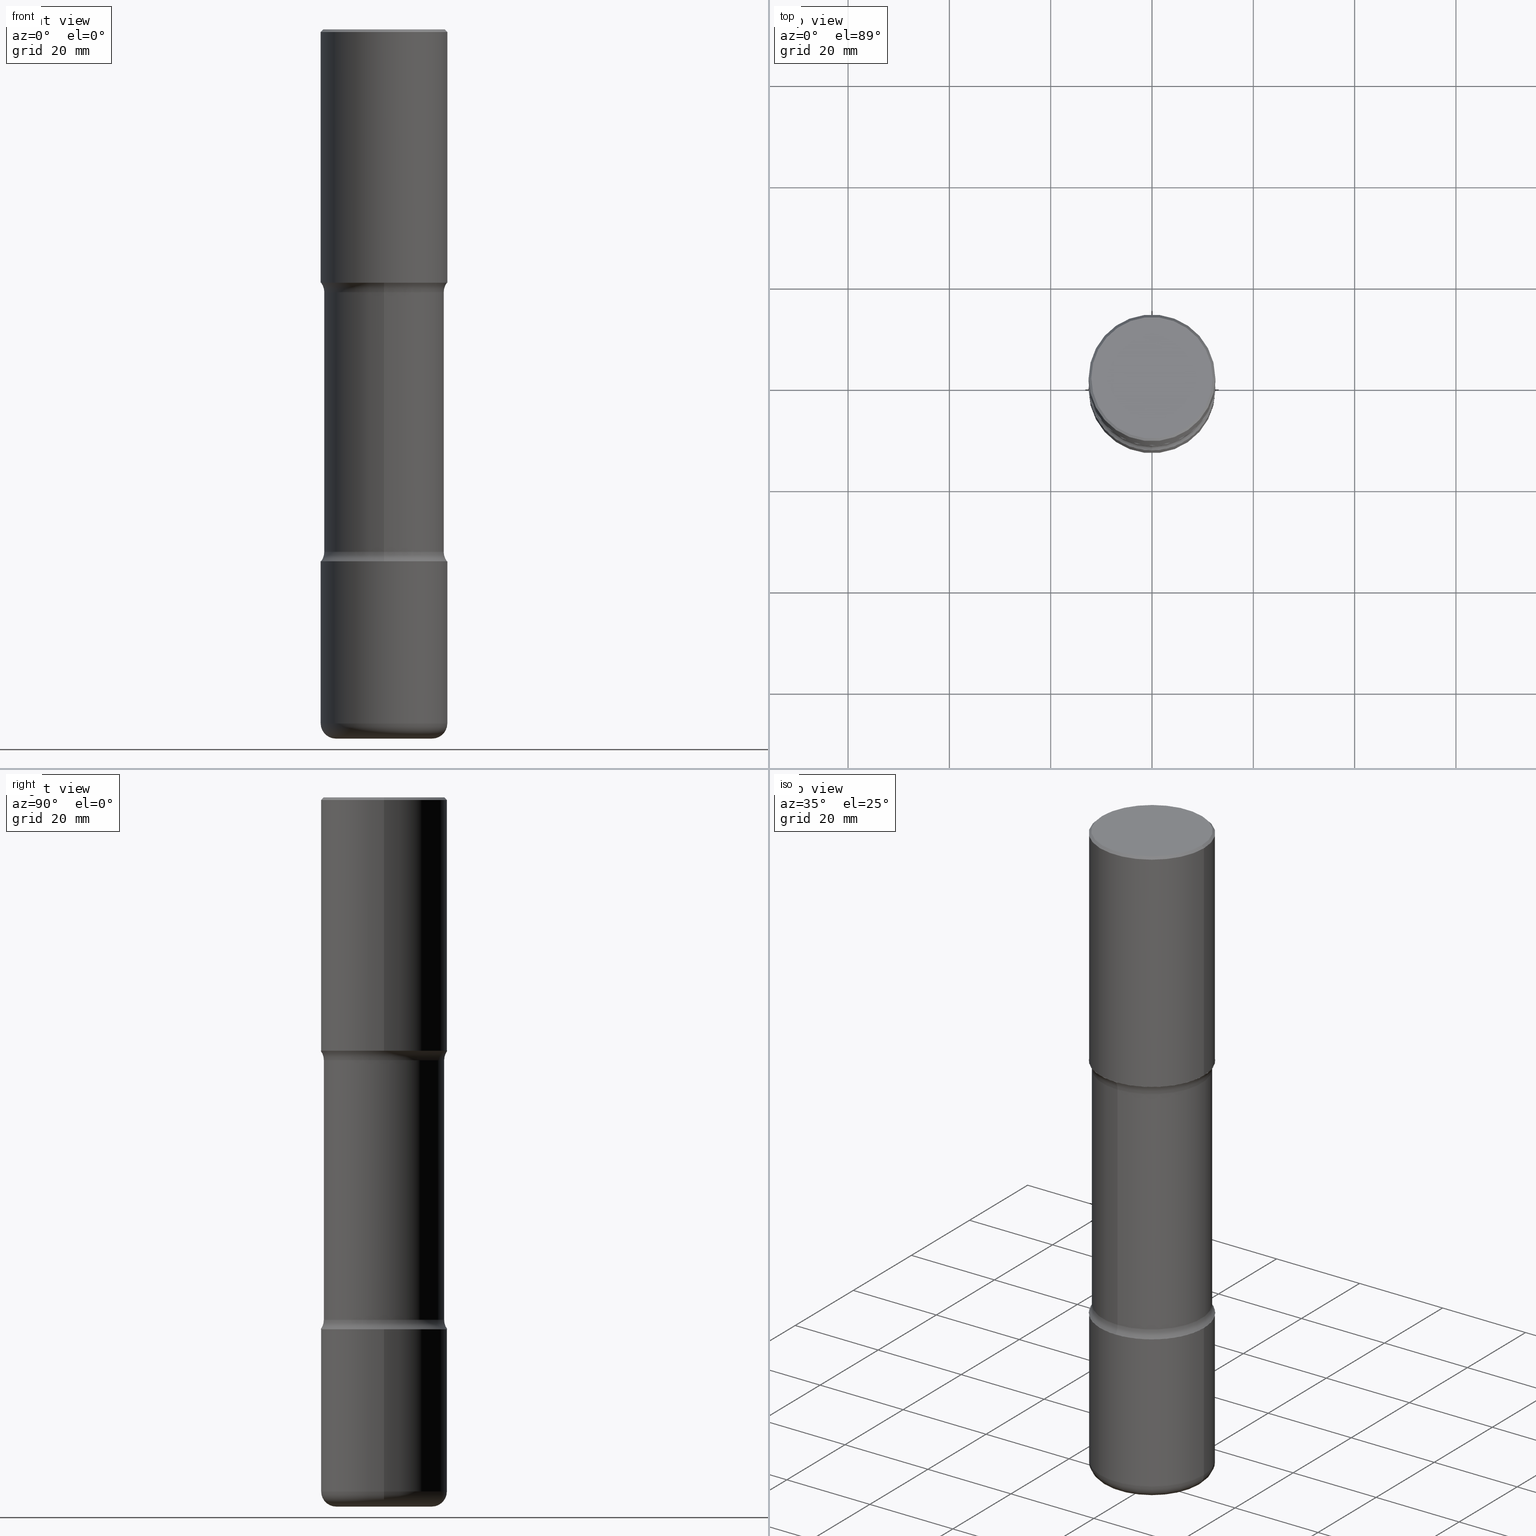
[diagram: canonical four-view strip — front | top / right | iso, engineering-drawing reading convention]
A machine part, canonical four-view strip (front | top / right | iso — engineering-drawing reading convention). The complete STEP part file that produces these views, byte-faithful:
ISO-10303-21;
HEADER;
FILE_DESCRIPTION (( 'STEP AP203' ),
    '1' );
FILE_NAME ('45019.STEP',
    '2024-03-02T04:45:03',
    ( '' ),
    ( '' ),
    'SwSTEP 2.0',
    'SolidWorks 2023',
    '' );
FILE_SCHEMA (( 'CONFIG_CONTROL_DESIGN' ));
ENDSEC;

DATA;
#1 = AXIS2_PLACEMENT_3D ( 'NONE', #270, #61, #349 ) ;
#2 = CARTESIAN_POINT ( 'NONE',  ( -4.064845063679533496E-15, -0.5925000000000143485, -4.059268949423744388 ) ) ;
#3 = DIRECTION ( 'NONE',  ( -2.445468806185136597E-29, 3.491481338843145583E-15, 1.000000000000000000 ) ) ;
#4 = ORIENTED_EDGE ( 'NONE', *, *, #292, .T. ) ;
#5 = ORIENTED_EDGE ( 'NONE', *, *, #307, .T. ) ;
#6 = ADVANCED_FACE ( 'NONE', ( #225 ), #288, .T. ) ;
#7 = DIRECTION ( 'NONE',  ( 6.860497997771528407E-15, 1.000000000000000000, 0.000000000000000000 ) ) ;
#8 = DIRECTION ( 'NONE',  ( -2.438088387897960049E-29, 3.491481338843145188E-15, 1.000000000000000000 ) ) ;
#9 = EDGE_LOOP ( 'NONE', ( #218, #521 ) ) ;
#10 = ORIENTED_EDGE ( 'NONE', *, *, #91, .F. ) ;
#11 = DIRECTION ( 'NONE',  ( 2.514686486086695474E-29, -3.392357681598433540E-15, -1.000000000000000000 ) ) ;
#12 = FACE_OUTER_BOUND ( 'NONE', #394, .T. ) ;
#13 = VERTEX_POINT ( 'NONE', #139 ) ;
#14 = VERTEX_POINT ( 'NONE', #23 ) ;
#15 = DIRECTION ( 'NONE',  ( -1.000000000000000000, 7.105427357601006592E-15, 0.000000000000000000 ) ) ;
#16 = ORIENTED_EDGE ( 'NONE', *, *, #380, .T. ) ;
#17 = EDGE_CURVE ( 'NONE', #543, #149, #352, .T. ) ;
#18 = ORIENTED_EDGE ( 'NONE', *, *, #466, .T. ) ;
#19 = EDGE_LOOP ( 'NONE', ( #82, #526, #59, #516 ) ) ;
#20 = CARTESIAN_POINT ( 'NONE',  ( -0.3740500000000000491, -1.596081428179996673E-14, -5.511800000000000033 ) ) ;
#21 = TOROIDAL_SURFACE ( 'NONE', #356, 0.5925000000000002487, 0.1250000000000001388 ) ;
#22 = DIRECTION ( 'NONE',  ( 1.000000000000000000, -6.860497997771530774E-15, 4.842012794319787643E-29 ) ) ;
#23 = CARTESIAN_POINT ( 'NONE',  ( 3.264535051818429005E-15, 0.4674999999999858713, -4.059268949423747941 ) ) ;
#24 = VERTEX_POINT ( 'NONE', #242 ) ;
#25 = DIRECTION ( 'NONE',  ( -2.445468806185136597E-29, 3.491481338843145583E-15, 1.000000000000000000 ) ) ;
#26 = ORIENTED_EDGE ( 'NONE', *, *, #233, .T. ) ;
#27 = CARTESIAN_POINT ( 'NONE',  ( 1.319012509992077146E-28, -1.883200289731827623E-14, -5.393699999999999939 ) ) ;
#28 = ADVANCED_FACE ( 'NONE', ( #76 ), #201, .T. ) ;
#29 = DIRECTION ( 'NONE',  ( 1.000000000000000000, -6.982962677686265922E-15, 4.876176775795935793E-29 ) ) ;
#30 = PLANE ( 'NONE',  #117 ) ;
#31 = CIRCLE ( 'NONE', #334, 0.3740500000000000491 ) ;
#32 = PERSON_AND_ORGANIZATION_ROLE ( 'design_supplier' ) ;
#33 = CARTESIAN_POINT ( 'NONE',  ( 1.357431692883558381E-28, -1.910775444375243513E-14, -5.511800000000000033 ) ) ;
#34 = APPROVAL_STATUS ( 'not_yet_approved' ) ;
#35 = EDGE_CURVE ( 'NONE', #55, #14, #294, .T. ) ;
#36 = PERSON_AND_ORGANIZATION_ROLE ( 'classification_officer' ) ;
#37 = CARTESIAN_POINT ( 'NONE',  ( 4.890937612370298557E-31, -6.982962677686327354E-17, -0.02000000000000010103 ) ) ;
#38 = CARTESIAN_POINT ( 'NONE',  ( 1.347893496593123646E-28, -1.924434684343564878E-14, -5.511800000000000033 ) ) ;
#39 = AXIS2_PLACEMENT_3D ( 'NONE', #287, #3, #204 ) ;
#40 = DATE_TIME_ROLE ( 'creation_date' ) ;
#41 = DIRECTION ( 'NONE',  ( 1.000000000000000000, -6.982962677686263555E-15, 0.000000000000000000 ) ) ;
#42 = DIRECTION ( 'NONE',  ( 6.982962677686265133E-15, 1.000000000000000000, -3.392357681598433540E-15 ) ) ;
#43 = COORDINATED_UNIVERSAL_TIME_OFFSET ( 5, 0, .BEHIND. ) ;
#44 = EDGE_CURVE ( 'NONE', #13, #14, #221, .T. ) ;
#45 = DIRECTION ( 'NONE',  ( 1.000000000000000000, -6.982962677686267499E-15, 0.000000000000000000 ) ) ;
#46 = DIRECTION ( 'NONE',  ( 2.514686486086695474E-29, -3.392357681598433540E-15, -1.000000000000000000 ) ) ;
#47 = DIRECTION ( 'NONE',  ( 1.000000000000000000, -6.982962677686266711E-15, 4.876176775795935793E-29 ) ) ;
#48 = DIRECTION ( 'NONE',  ( -2.445468806185136877E-29, 3.491481338843145188E-15, 1.000000000000000000 ) ) ;
#49 = AXIS2_PLACEMENT_3D ( 'NONE', #389, #11, #532 ) ;
#50 = CIRCLE ( 'NONE', #355, 0.4675000000000000822 ) ;
#51 = AXIS2_PLACEMENT_3D ( 'NONE', #347, #267, #190 ) ;
#52 = ORIENTED_EDGE ( 'NONE', *, *, #215, .F. ) ;
#53 = ADVANCED_FACE ( 'NONE', ( #407 ), #414, .F. ) ;
#54 = CARTESIAN_POINT ( 'NONE',  ( 0.4921500000000000874, -2.226866797914157358E-14, -5.393699999999999939 ) ) ;
#55 = VERTEX_POINT ( 'NONE', #154 ) ;
#56 = PLANE ( 'NONE',  #410 ) ;
#57 = DIRECTION ( 'NONE',  ( -1.000000000000000000, 6.982962677686265922E-15, 0.000000000000000000 ) ) ;
#58 = FACE_OUTER_BOUND ( 'NONE', #150, .T. ) ;
#59 = ORIENTED_EDGE ( 'NONE', *, *, #35, .T. ) ;
#60 = EDGE_CURVE ( 'NONE', #390, #388, #538, .T. ) ;
#61 = DIRECTION ( 'NONE',  ( 2.514686486086695474E-29, -3.392357681598433540E-15, -1.000000000000000000 ) ) ;
#62 = PRODUCT ( '45019', '45019', '', ( #136 ) ) ;
#63 = DESIGN_CONTEXT ( 'detailed design', #371, 'design' ) ;
#64 = ORIENTED_EDGE ( 'NONE', *, *, #527, .T. ) ;
#65 = PRODUCT_DEFINITION ( 'UNKNOWN', '', #522, #63 ) ;
#66 = EDGE_LOOP ( 'NONE', ( #542, #379, #433, #192 ) ) ;
#67 = EDGE_LOOP ( 'NONE', ( #470, #341 ) ) ;
#68 = ORIENTED_EDGE ( 'NONE', *, *, #380, .F. ) ;
#69 = AXIS2_PLACEMENT_3D ( 'NONE', #428, #125, #520 ) ;
#70 = PERSON_AND_ORGANIZATION ( #472, #170 ) ;
#71 = LOCAL_TIME ( 23, 45, 3.000000000000000000, #318 ) ;
#72 = AXIS2_PLACEMENT_3D ( 'NONE', #275, #365, #232 ) ;
#73 = ORIENTED_EDGE ( 'NONE', *, *, #425, .F. ) ;
#74 = DIRECTION ( 'NONE',  ( -1.000000000000000000, 6.982962677686265922E-15, -4.883557194083112340E-29 ) ) ;
#75 = MANIFOLD_SOLID_BREP ( 'Body-Move/Copy2[4]', #306 ) ;
#76 = FACE_OUTER_BOUND ( 'NONE', #223, .T. ) ;
#77 = FACE_OUTER_BOUND ( 'NONE', #219, .T. ) ;
#78 = DIRECTION ( 'NONE',  ( 2.514686486086695474E-29, -3.392357681598433540E-15, -1.000000000000000000 ) ) ;
#79 = CLOSED_SHELL ( 'NONE', ( #448, #266, #547, #53, #420, #393 ) ) ;
#80 = TOROIDAL_SURFACE ( 'NONE', #366, 0.3740500000000001601, 0.1180999999999999966 ) ;
#81 = CALENDAR_DATE ( 2024, 1, 3 ) ;
#82 = ORIENTED_EDGE ( 'NONE', *, *, #476, .F. ) ;
#83 = CARTESIAN_POINT ( 'NONE',  ( -0.4921500000000003650, 2.553075289854047247E-17, -1.968499999999999472 ) ) ;
#84 = DATE_TIME_ROLE ( 'classification_date' ) ;
#85 = DIRECTION ( 'NONE',  ( -2.445468806185136877E-29, 3.491481338843145188E-15, 1.000000000000000000 ) ) ;
#86 = PERSON_AND_ORGANIZATION ( #472, #170 ) ;
#87 = CARTESIAN_POINT ( 'NONE',  ( 4.890937612370298557E-31, -6.982962677686327354E-17, -0.02000000000000010103 ) ) ;
#88 = EDGE_CURVE ( 'NONE', #345, #180, #280, .T. ) ;
#89 = PERSON_AND_ORGANIZATION_ROLE ( 'design_owner' ) ;
#90 = CARTESIAN_POINT ( 'NONE',  ( 0.4921500000000000874, -3.446223716380123532E-15, -0.02000000000000010103 ) ) ;
#91 = EDGE_CURVE ( 'NONE', #14, #13, #50, .T. ) ;
#92 = CARTESIAN_POINT ( 'NONE',  ( 1.010907895100811684E-28, -1.443308555850979562E-14, -4.133799999999999919 ) ) ;
#93 = FACE_OUTER_BOUND ( 'NONE', #404, .T. ) ;
#94 = CC_DESIGN_PERSON_AND_ORGANIZATION_ASSIGNMENT ( #330, #32, ( #522 ) ) ;
#95 = AXIS2_PLACEMENT_3D ( 'NONE', #525, #442, #357 ) ;
#96 = CIRCLE ( 'NONE', #402, 0.4921500000000003094 ) ;
#97 = CIRCLE ( 'NONE', #51, 0.4675000000000001377 ) ;
#98 = VERTEX_POINT ( 'NONE', #119 ) ;
#99 = LINE ( 'NONE', #360, #157 ) ;
#100 = DIRECTION ( 'NONE',  ( -2.445468806185136597E-29, 3.491481338843145583E-15, 1.000000000000000000 ) ) ;
#101 = CIRCLE ( 'NONE', #171, 0.1250000000000001110 ) ;
#102 = EDGE_LOOP ( 'NONE', ( #184, #135, #191, #530 ) ) ;
#103 = DIRECTION ( 'NONE',  ( -1.000000000000000000, 6.982962677686265922E-15, -4.876176775795935793E-29 ) ) ;
#104 = CARTESIAN_POINT ( 'NONE',  ( -4.064845063679584772E-15, -0.5925000000000075762, -2.043031050576251673 ) ) ;
#105 = ORIENTED_EDGE ( 'NONE', *, *, #559, .T. ) ;
#106 = CARTESIAN_POINT ( 'NONE',  ( 0.4921500000000000874, -3.436665081823296565E-15, 2.399810400207970163E-29 ) ) ;
#107 = DIRECTION ( 'NONE',  ( 2.514686486086695194E-29, -3.392357681598433935E-15, -1.000000000000000000 ) ) ;
#108 = ADVANCED_FACE ( 'NONE', ( #505 ), #276, .F. ) ;
#109 = VECTOR ( 'NONE', #515, 39.37007874015748143 ) ;
#110 = CARTESIAN_POINT ( 'NONE',  ( 0.000000000000000000, 0.000000000000000000, 0.000000000000000000 ) ) ;
#111 = FACE_OUTER_BOUND ( 'NONE', #102, .T. ) ;
#112 = DIRECTION ( 'NONE',  ( -1.000000000000000000, 6.982962677686265922E-15, -4.883557194083112340E-29 ) ) ;
#113 = DIRECTION ( 'NONE',  ( 2.514686486086695474E-29, -3.392357681598433540E-15, -1.000000000000000000 ) ) ;
#114 = CALENDAR_DATE ( 2024, 1, 3 ) ;
#115 = ADVANCED_FACE ( 'NONE', ( #111 ), #363, .F. ) ;
#116 = DIRECTION ( 'NONE',  ( 2.438088387897960049E-29, -3.491481338843145188E-15, -1.000000000000000000 ) ) ;
#117 = AXIS2_PLACEMENT_3D ( 'NONE', #320, #116, #361 ) ;
#118 = AXIS2_PLACEMENT_3D ( 'NONE', #144, #405, #193 ) ;
#119 = CARTESIAN_POINT ( 'NONE',  ( -3.376394089603216058E-15, -0.4921500000000076924, -1.968499999999997918 ) ) ;
#120 = APPROVAL_ROLE ( '' ) ;
#121 = DIRECTION ( 'NONE',  ( -6.982962677686266711E-15, -1.000000000000000000, 3.491481338843145583E-15 ) ) ;
#122 = APPROVAL ( #241, 'UNSPECIFIED' ) ;
#123 = APPROVAL_ROLE ( '' ) ;
#124 = CARTESIAN_POINT ( 'NONE',  ( 9.926815591731683841E-29, -1.417286178625843291E-14, -4.059268949423747053 ) ) ;
#125 = DIRECTION ( 'NONE',  ( -2.445468806185136597E-29, 3.491481338843145583E-15, 1.000000000000000000 ) ) ;
#126 = CIRCLE ( 'NONE', #39, 0.4721500000000000696 ) ;
#127 = VECTOR ( 'NONE', #48, 39.37007874015748143 ) ;
#128 = DIRECTION ( 'NONE',  ( 2.514686486086695474E-29, -3.392357681598433540E-15, -1.000000000000000000 ) ) ;
#129 = DIRECTION ( 'NONE',  ( 2.514686486086695474E-29, -3.392357681598433540E-15, -1.000000000000000000 ) ) ;
#130 = FACE_OUTER_BOUND ( 'NONE', #174, .T. ) ;
#131 = ADVANCED_FACE ( 'NONE', ( #155 ), #30, .T. ) ;
#132 = ORIENTED_EDGE ( 'NONE', *, *, #458, .T. ) ;
#133 = AXIS2_PLACEMENT_3D ( 'NONE', #185, #74, #151 ) ;
#134 = CIRCLE ( 'NONE', #452, 0.4921500000000001984 ) ;
#135 = ORIENTED_EDGE ( 'NONE', *, *, #559, .F. ) ;
#136 = MECHANICAL_CONTEXT ( 'NONE', #436, 'mechanical' ) ;
#137 = DIRECTION ( 'NONE',  ( 6.982962677686265922E-15, 1.000000000000000000, -3.330506545156062313E-15 ) ) ;
#138 = APPROVAL ( #34, 'UNSPECIFIED' ) ;
#139 = CARTESIAN_POINT ( 'NONE',  ( -3.291838451780625261E-15, -0.4675000000000142930, -4.059268949423745276 ) ) ;
#140 = ORIENTED_EDGE ( 'NONE', *, *, #335, .T. ) ;
#141 = DIRECTION ( 'NONE',  ( -2.445468806185136597E-29, 3.491481338843145583E-15, 1.000000000000000000 ) ) ;
#142 = VERTEX_POINT ( 'NONE', #545 ) ;
#143 = ORIENTED_EDGE ( 'NONE', *, *, #279, .F. ) ;
#144 = CARTESIAN_POINT ( 'NONE',  ( 1.010907895100811684E-28, -1.443308555850979562E-14, -4.133799999999999919 ) ) ;
#145 = CIRCLE ( 'NONE', #118, 0.4921500000000001984 ) ;
#146 = CIRCLE ( 'NONE', #463, 0.4921500000000000874 ) ;
#147 = DIRECTION ( 'NONE',  ( 1.000000000000000000, 0.000000000000000000, 0.000000000000000000 ) ) ;
#148 = LINE ( 'NONE', #310, #449 ) ;
#149 = VERTEX_POINT ( 'NONE', #464 ) ;
#150 = EDGE_LOOP ( 'NONE', ( #4, #16, #336, #212 ) ) ;
#151 = DIRECTION ( 'NONE',  ( -6.982962677686265133E-15, -1.000000000000000000, 0.000000000000000000 ) ) ;
#152 = VERTEX_POINT ( 'NONE', #83 ) ;
#153 = CARTESIAN_POINT ( 'NONE',  ( 4.813905344975440153E-29, -6.872981015512730130E-15, -1.968499999999999472 ) ) ;
#154 = CARTESIAN_POINT ( 'NONE',  ( 3.436665081823398723E-15, 0.4921499999999857655, -4.133800000000001695 ) ) ;
#155 = FACE_OUTER_BOUND ( 'NONE', #268, .T. ) ;
#156 = ADVANCED_BREP_SHAPE_REPRESENTATION ( '45019', ( #429, #430, #75, #397 ), #188 ) ;
#157 = VECTOR ( 'NONE', #401, 39.37007874015748143 ) ;
#158 = DIRECTION ( 'NONE',  ( 6.982962677686265922E-15, 1.000000000000000000, -2.337410048054984002E-15 ) ) ;
#159 = AXIS2_PLACEMENT_3D ( 'NONE', #368, #112, #549 ) ;
#160 = DATE_AND_TIME ( #81, #523 ) ;
#161 = CC_DESIGN_PERSON_AND_ORGANIZATION_ASSIGNMENT ( #409, #89, ( #62 ) ) ;
#162 = CARTESIAN_POINT ( 'NONE',  ( 9.921656725330168688E-29, -1.418024957656984198E-14, -4.059268949423747053 ) ) ;
#163 = EDGE_CURVE ( 'NONE', #152, #345, #413, .T. ) ;
#164 = APPROVAL_DATE_TIME ( #322, #274 ) ;
#165 = DIRECTION ( 'NONE',  ( -2.445468806185136877E-29, 3.491481338843145188E-15, 1.000000000000000000 ) ) ;
#166 = SECURITY_CLASSIFICATION_LEVEL ( 'unclassified' ) ;
#167 = DIRECTION ( 'NONE',  ( 1.000000000000000000, -6.860497997771530774E-15, 4.842012794319787643E-29 ) ) ;
#168 = VECTOR ( 'NONE', #396, 39.37007874015748143 ) ;
#169 = LINE ( 'NONE', #333, #237 ) ;
#170 = ORGANIZATION ( 'UNSPECIFIED', 'UNSPECIFIED', '' ) ;
#171 = AXIS2_PLACEMENT_3D ( 'NONE', #2, #167, #418 ) ;
#172 = DIRECTION ( 'NONE',  ( -2.514686486086694914E-29, 3.392357681598433935E-15, 1.000000000000000000 ) ) ;
#173 = LINE ( 'NONE', #286, #552 ) ;
#174 = EDGE_LOOP ( 'NONE', ( #105, #432, #10, #181 ) ) ;
#175 = ORIENTED_EDGE ( 'NONE', *, *, #316, .F. ) ;
#176 = APPROVAL_PERSON_ORGANIZATION ( #504, #138, #123 ) ;
#177 = CONICAL_SURFACE ( 'NONE', #500, 0.4921500000000000874, 0.7853981633974471688 ) ;
#178 = CC_DESIGN_PERSON_AND_ORGANIZATION_ASSIGNMENT ( #548, #421, ( #522 ) ) ;
#179 = DIRECTION ( 'NONE',  ( 1.000000000000000000, -6.982962677686265922E-15, 4.876176775795935793E-29 ) ) ;
#180 = VERTEX_POINT ( 'NONE', #424 ) ;
#181 = ORIENTED_EDGE ( 'NONE', *, *, #289, .F. ) ;
#182 =( CONVERSION_BASED_UNIT ( 'INCH', #342 ) LENGTH_UNIT ( ) NAMED_UNIT ( #319 ) );
#183 = ORIENTED_EDGE ( 'NONE', *, *, #44, .T. ) ;
#184 = ORIENTED_EDGE ( 'NONE', *, *, #517, .F. ) ;
#185 = CARTESIAN_POINT ( 'NONE',  ( 4.137405386529163040E-15, 0.5924999999999929212, -2.043031050576255225 ) ) ;
#186 = DIRECTION ( 'NONE',  ( 1.000000000000000000, -6.982962677686264344E-15, 4.883557194083111780E-29 ) ) ;
#187 = ADVANCED_FACE ( 'NONE', ( #130 ), #512, .T. ) ;
#188 =( GEOMETRIC_REPRESENTATION_CONTEXT ( 3 ) GLOBAL_UNCERTAINTY_ASSIGNED_CONTEXT ( ( #453 ) ) GLOBAL_UNIT_ASSIGNED_CONTEXT ( ( #182, #222, #350 ) ) REPRESENTATION_CONTEXT ( 'NONE', 'WORKASPACE' ) );
#189 = CIRCLE ( 'NONE', #507, 0.1180999999999999689 ) ;
#190 = DIRECTION ( 'NONE',  ( 6.982962677686265922E-15, 1.000000000000000000, -3.506115072082476004E-15 ) ) ;
#191 = ORIENTED_EDGE ( 'NONE', *, *, #295, .T. ) ;
#192 = ORIENTED_EDGE ( 'NONE', *, *, #475, .F. ) ;
#193 = DIRECTION ( 'NONE',  ( 1.000000000000000000, -6.982962677686267499E-15, 0.000000000000000000 ) ) ;
#194 = CARTESIAN_POINT ( 'NONE',  ( 4.853095759895353255E-29, -7.338093387288914893E-15, -2.043031050576253449 ) ) ;
#195 = CIRCLE ( 'NONE', #234, 0.4921500000000005870 ) ;
#196 = EDGE_CURVE ( 'NONE', #388, #543, #324, .T. ) ;
#197 = APPROVAL_ROLE ( '' ) ;
#198 = CALENDAR_DATE ( 2024, 1, 3 ) ;
#199 = CIRCLE ( 'NONE', #1, 0.4921500000000001984 ) ;
#200 = DIRECTION ( 'NONE',  ( -2.445468806185136597E-29, 3.491481338843145583E-15, 1.000000000000000000 ) ) ;
#201 = CYLINDRICAL_SURFACE ( 'NONE', #387, 0.4675000000000001377 ) ;
#202 = EDGE_CURVE ( 'NONE', #313, #152, #96, .T. ) ;
#203 = TOROIDAL_SURFACE ( 'NONE', #524, 0.5925000000000001377, 0.1250000000000001110 ) ;
#204 = DIRECTION ( 'NONE',  ( 1.000000000000000000, -6.982962677686266711E-15, 4.876006802227158492E-29 ) ) ;
#205 = CARTESIAN_POINT ( 'NONE',  ( 1.347893496593123646E-28, -1.924434684343564878E-14, -5.511800000000000033 ) ) ;
#206 = DIRECTION ( 'NONE',  ( 6.982962677686265922E-15, 1.000000000000000000, -3.330506545156062313E-15 ) ) ;
#207 = CARTESIAN_POINT ( 'NONE',  ( 1.319012509992077146E-28, -1.883200289731827623E-14, -5.393699999999999939 ) ) ;
#208 = AXIS2_PLACEMENT_3D ( 'NONE', #247, #46, #206 ) ;
#209 = CARTESIAN_POINT ( 'NONE',  ( 1.357431692883558381E-28, -1.910775444375243513E-14, -5.511800000000000033 ) ) ;
#210 = EDGE_CURVE ( 'NONE', #534, #482, #126, .T. ) ;
#211 = CIRCLE ( 'NONE', #49, 0.4921500000000001984 ) ;
#212 = ORIENTED_EDGE ( 'NONE', *, *, #17, .F. ) ;
#213 = CARTESIAN_POINT ( 'NONE',  ( 0.000000000000000000, 0.000000000000000000, 0.000000000000000000 ) ) ;
#214 = FACE_OUTER_BOUND ( 'NONE', #536, .T. ) ;
#215 = EDGE_CURVE ( 'NONE', #313, #180, #173, .T. ) ;
#216 = CARTESIAN_POINT ( 'NONE',  ( -0.3740500000000001601, -1.617421779420761837E-14, -5.393699999999999939 ) ) ;
#217 = DIRECTION ( 'NONE',  ( 1.000000000000000000, -6.982962677686264344E-15, 4.883557194083111780E-29 ) ) ;
#218 = ORIENTED_EDGE ( 'NONE', *, *, #202, .F. ) ;
#219 = EDGE_LOOP ( 'NONE', ( #255, #227, #300, #52 ) ) ;
#220 = CARTESIAN_POINT ( 'NONE',  ( 1.010907895100811684E-28, -1.443308555850979562E-14, -4.133799999999999919 ) ) ;
#221 = CIRCLE ( 'NONE', #72, 0.4675000000000000822 ) ;
#222 =( NAMED_UNIT ( * ) PLANE_ANGLE_UNIT ( ) SI_UNIT ( $, .RADIAN. ) );
#223 = EDGE_LOOP ( 'NONE', ( #455, #64, #450, #314 ) ) ;
#224 = CARTESIAN_POINT ( 'NONE',  ( 0.000000000000000000, 0.000000000000000000, 0.000000000000000000 ) ) ;
#225 = FACE_OUTER_BOUND ( 'NONE', #66, .T. ) ;
#226 = DIRECTION ( 'NONE',  ( 1.000000000000000000, -6.982962677686266711E-15, 4.876006802227158492E-29 ) ) ;
#227 = ORIENTED_EDGE ( 'NONE', *, *, #163, .T. ) ;
#228 = CIRCLE ( 'NONE', #325, 0.4721500000000000696 ) ;
#229 = AXIS2_PLACEMENT_3D ( 'NONE', #194, #78, #465 ) ;
#230 = PLANE ( 'NONE',  #439 ) ;
#231 = ORIENTED_EDGE ( 'NONE', *, *, #283, .F. ) ;
#232 = DIRECTION ( 'NONE',  ( 6.982962677686265922E-15, 1.000000000000000000, -3.506115072082476398E-15 ) ) ;
#233 = EDGE_CURVE ( 'NONE', #149, #447, #134, .T. ) ;
#234 = AXIS2_PLACEMENT_3D ( 'NONE', #343, #529, #137 ) ;
#235 = CALENDAR_DATE ( 2024, 1, 3 ) ;
#236 = CLOSED_SHELL ( 'NONE', ( #446, #408, #131, #6, #502, #369 ) ) ;
#237 = VECTOR ( 'NONE', #107, 39.37007874015748143 ) ;
#238 = DIRECTION ( 'NONE',  ( 2.438088387897960049E-29, -3.491481338843145188E-15, -1.000000000000000000 ) ) ;
#239 = SHAPE_DEFINITION_REPRESENTATION ( #535, #156 ) ;
#240 = CC_DESIGN_DATE_AND_TIME_ASSIGNMENT ( #372, #40, ( #65 ) ) ;
#241 = APPROVAL_STATUS ( 'not_yet_approved' ) ;
#242 = CARTESIAN_POINT ( 'NONE',  ( 3.436665081823346264E-15, 0.4921499999999935371, -1.968500000000001249 ) ) ;
#243 = APPROVAL_STATUS ( 'not_yet_approved' ) ;
#244 = DIRECTION ( 'NONE',  ( 1.000000000000000000, -6.982962677686265922E-15, 0.000000000000000000 ) ) ;
#245 = DIRECTION ( 'NONE',  ( 1.000000000000000000, -6.982962677686267499E-15, 0.000000000000000000 ) ) ;
#246 = COORDINATED_UNIVERSAL_TIME_OFFSET ( 5, 0, .BEHIND. ) ;
#247 = CARTESIAN_POINT ( 'NONE',  ( 4.664028302684594941E-29, -7.087613470544705473E-15, -1.968499999999999472 ) ) ;
#248 = CYLINDRICAL_SURFACE ( 'NONE', #69, 0.4921500000000002539 ) ;
#249 = DIRECTION ( 'NONE',  ( 2.445468806185136597E-29, -3.491481338843145583E-15, -1.000000000000000000 ) ) ;
#250 = AXIS2_PLACEMENT_3D ( 'NONE', #207, #328, #422 ) ;
#251 = ORIENTED_EDGE ( 'NONE', *, *, #475, .T. ) ;
#252 = CONICAL_SURFACE ( 'NONE', #321, 0.4921500000000000874, 0.7853981633974471688 ) ;
#253 = DIRECTION ( 'NONE',  ( -6.982962677686265922E-15, -1.000000000000000000, 3.392357681598433935E-15 ) ) ;
#254 = FACE_OUTER_BOUND ( 'NONE', #297, .T. ) ;
#255 = ORIENTED_EDGE ( 'NONE', *, *, #202, .T. ) ;
#256 = VERTEX_POINT ( 'NONE', #556 ) ;
#257 = CARTESIAN_POINT ( 'NONE',  ( 3.264535051818378912E-15, 0.4674999999999928102, -2.043031050576254337 ) ) ;
#258 = ORIENTED_EDGE ( 'NONE', *, *, #210, .F. ) ;
#259 = ORIENTED_EDGE ( 'NONE', *, *, #292, .F. ) ;
#260 = CARTESIAN_POINT ( 'NONE',  ( 9.926815591731683841E-29, -1.417286178625843291E-14, -4.059268949423747053 ) ) ;
#261 = AXIS2_PLACEMENT_3D ( 'NONE', #110, #272, #29 ) ;
#262 = CARTESIAN_POINT ( 'NONE',  ( -0.4721500000000000696, 3.331920641658002013E-15, 8.537024980177643606E-18 ) ) ;
#263 = EDGE_LOOP ( 'NONE', ( #175, #489, #480, #348 ) ) ;
#264 = ADVANCED_FACE ( 'NONE', ( #93 ), #203, .F. ) ;
#265 = LINE ( 'NONE', #483, #168 ) ;
#266 = ADVANCED_FACE ( 'NONE', ( #558 ), #177, .T. ) ;
#267 = DIRECTION ( 'NONE',  ( 2.514686486086695474E-29, -3.392357681598433540E-15, -1.000000000000000000 ) ) ;
#268 = EDGE_LOOP ( 'NONE', ( #304, #494 ) ) ;
#269 = ORIENTED_EDGE ( 'NONE', *, *, #544, .T. ) ;
#270 = CARTESIAN_POINT ( 'NONE',  ( 1.010907895100811684E-28, -1.443308555850979562E-14, -4.133799999999999919 ) ) ;
#271 = LOCAL_TIME ( 23, 45, 3.000000000000000000, #467 ) ;
#272 = DIRECTION ( 'NONE',  ( -2.445468806185136597E-29, 3.491481338843145583E-15, 1.000000000000000000 ) ) ;
#273 = DIRECTION ( 'NONE',  ( 1.000000000000000000, -6.982962677686263555E-15, 0.000000000000000000 ) ) ;
#274 = APPROVAL ( #243, 'UNSPECIFIED' ) ;
#275 = CARTESIAN_POINT ( 'NONE',  ( 9.921656725330168688E-29, -1.418024957656984198E-14, -4.059268949423747053 ) ) ;
#276 = PLANE ( 'NONE',  #340 ) ;
#277 = CIRCLE ( 'NONE', #133, 0.1250000000000001665 ) ;
#278 = PERSON_AND_ORGANIZATION_ROLE ( 'creator' ) ;
#279 = EDGE_CURVE ( 'NONE', #482, #180, #471, .T. ) ;
#280 = CIRCLE ( 'NONE', #546, 0.4921500000000000874 ) ;
#281 = AXIS2_PLACEMENT_3D ( 'NONE', #104, #22, #7 ) ;
#282 = DIRECTION ( 'NONE',  ( 2.514686486086695474E-29, -3.392357681598433540E-15, -1.000000000000000000 ) ) ;
#283 = EDGE_CURVE ( 'NONE', #24, #98, #484, .T. ) ;
#284 = CARTESIAN_POINT ( 'NONE',  ( -0.4921500000000002539, 3.496936074043334869E-15, -2.420853904668952910E-29 ) ) ;
#285 = CALENDAR_DATE ( 2024, 1, 3 ) ;
#286 = CARTESIAN_POINT ( 'NONE',  ( 0.4921500000000002539, -3.436665081823297749E-15, 2.399810400207971004E-29 ) ) ;
#287 = CARTESIAN_POINT ( 'NONE',  ( -2.087702828670439639E-46, 2.980686340760894400E-32, 8.537024980200822558E-18 ) ) ;
#288 = TOROIDAL_SURFACE ( 'NONE', #375, 0.3740500000000001601, 0.1180999999999999966 ) ;
#289 = EDGE_CURVE ( 'NONE', #358, #14, #169, .T. ) ;
#290 = FACE_OUTER_BOUND ( 'NONE', #487, .T. ) ;
#291 = CARTESIAN_POINT ( 'NONE',  ( 4.813905344975440153E-29, -6.872981015512730130E-15, -1.968499999999999472 ) ) ;
#292 = EDGE_CURVE ( 'NONE', #543, #256, #560, .T. ) ;
#293 = LOCAL_TIME ( 23, 45, 3.000000000000000000, #43 ) ;
#294 = CIRCLE ( 'NONE', #159, 0.1250000000000001110 ) ;
#295 = EDGE_CURVE ( 'NONE', #358, #24, #277, .T. ) ;
#296 = DIRECTION ( 'NONE',  ( 1.000000000000000000, -6.982962677686265922E-15, 4.876176775795935793E-29 ) ) ;
#297 = EDGE_LOOP ( 'NONE', ( #359, #132, #344, #499 ) ) ;
#298 = CARTESIAN_POINT ( 'NONE',  ( -3.291838451780680876E-15, -0.4675000000000075207, -2.043031050576251229 ) ) ;
#299 = CARTESIAN_POINT ( 'NONE',  ( 1.319012509992077146E-28, -1.883200289731827623E-14, -5.393699999999999939 ) ) ;
#300 = ORIENTED_EDGE ( 'NONE', *, *, #468, .F. ) ;
#301 = DIRECTION ( 'NONE',  ( 1.000000000000000000, -6.982962677686264344E-15, 0.000000000000000000 ) ) ;
#302 = AXIS2_PLACEMENT_3D ( 'NONE', #519, #553, #45 ) ;
#303 = EDGE_LOOP ( 'NONE', ( #231, #73 ) ) ;
#304 = ORIENTED_EDGE ( 'NONE', *, *, #466, .F. ) ;
#305 = LOCAL_TIME ( 23, 45, 3.000000000000000000, #417 ) ;
#306 = CLOSED_SHELL ( 'NONE', ( #187, #264, #481, #115, #108, #491, #317, #28 ) ) ;
#307 = EDGE_CURVE ( 'NONE', #534, #345, #99, .T. ) ;
#308 = TOROIDAL_SURFACE ( 'NONE', #550, 0.5925000000000001377, 0.1250000000000001110 ) ;
#309 = CYLINDRICAL_SURFACE ( 'NONE', #541, 0.4921500000000000874 ) ;
#310 = CARTESIAN_POINT ( 'NONE',  ( -3.207282813958055763E-15, -0.4675000000000192335, -5.511799999999999145 ) ) ;
#311 = ORIENTED_EDGE ( 'NONE', *, *, #88, .T. ) ;
#312 = ORIENTED_EDGE ( 'NONE', *, *, #425, .T. ) ;
#313 = VERTEX_POINT ( 'NONE', #490 ) ;
#314 = ORIENTED_EDGE ( 'NONE', *, *, #44, .F. ) ;
#315 = SECURITY_CLASSIFICATION ( '', '', #166 ) ;
#316 = EDGE_CURVE ( 'NONE', #482, #534, #228, .T. ) ;
#317 = ADVANCED_FACE ( 'NONE', ( #346 ), #308, .F. ) ;
#318 = COORDINATED_UNIVERSAL_TIME_OFFSET ( 5, 0, .BEHIND. ) ;
#319 = DIMENSIONAL_EXPONENTS ( 1.000000000000000000, 0.000000000000000000, 0.000000000000000000, 0.000000000000000000, 0.000000000000000000, 0.000000000000000000, 0.000000000000000000 ) ;
#320 = CARTESIAN_POINT ( 'NONE',  ( 1.347893496593123646E-28, -1.924434684343564878E-14, -5.511800000000000033 ) ) ;
#321 = AXIS2_PLACEMENT_3D ( 'NONE', #492, #383, #57 ) ;
#322 = DATE_AND_TIME ( #114, #71 ) ;
#323 = CC_DESIGN_SECURITY_CLASSIFICATION ( #315, ( #522 ) ) ;
#324 = CIRCLE ( 'NONE', #362, 0.1180999999999999689 ) ;
#325 = AXIS2_PLACEMENT_3D ( 'NONE', #392, #25, #226 ) ;
#326 = DIRECTION ( 'NONE',  ( -2.445468806185136597E-29, 3.491481338843145583E-15, 1.000000000000000000 ) ) ;
#327 = PERSON_AND_ORGANIZATION ( #472, #170 ) ;
#328 = DIRECTION ( 'NONE',  ( -2.445468806185136597E-29, 3.491481338843145583E-15, 1.000000000000000000 ) ) ;
#329 = DIRECTION ( 'NONE',  ( 2.514686486086694914E-29, -3.392357681598433935E-15, -1.000000000000000000 ) ) ;
#330 = PERSON_AND_ORGANIZATION ( #472, #170 ) ;
#331 = DIRECTION ( 'NONE',  ( 1.000000000000000000, -6.982962677686267499E-15, 0.000000000000000000 ) ) ;
#332 = CARTESIAN_POINT ( 'NONE',  ( 0.4721500000000000696, -3.342703923013975763E-15, 8.537024980224040028E-18 ) ) ;
#333 = CARTESIAN_POINT ( 'NONE',  ( 3.264535051818466476E-15, 0.4674999999999809863, -5.511800000000000921 ) ) ;
#334 = AXIS2_PLACEMENT_3D ( 'NONE', #205, #479, #41 ) ;
#335 = EDGE_CURVE ( 'NONE', #142, #55, #199, .T. ) ;
#336 = ORIENTED_EDGE ( 'NONE', *, *, #233, .F. ) ;
#337 = DIRECTION ( 'NONE',  ( -2.445468806185136597E-29, 3.491481338843145583E-15, 1.000000000000000000 ) ) ;
#338 = EDGE_LOOP ( 'NONE', ( #26, #438 ) ) ;
#339 = APPROVAL_PERSON_ORGANIZATION ( #327, #122, #120 ) ;
#340 = AXIS2_PLACEMENT_3D ( 'NONE', #153, #329, #459 ) ;
#341 = ORIENTED_EDGE ( 'NONE', *, *, #316, .T. ) ;
#342 = LENGTH_MEASURE_WITH_UNIT ( LENGTH_MEASURE( 0.02539999999999999897 ), #445 );
#343 = CARTESIAN_POINT ( 'NONE',  ( 4.664028302684594941E-29, -7.087613470544705473E-15, -1.968499999999999472 ) ) ;
#344 = ORIENTED_EDGE ( 'NONE', *, *, #215, .T. ) ;
#345 = VERTEX_POINT ( 'NONE', #451 ) ;
#346 = FACE_OUTER_BOUND ( 'NONE', #19, .T. ) ;
#347 = CARTESIAN_POINT ( 'NONE',  ( 4.851450528362542528E-29, -7.340449452484660690E-15, -2.043031050576253005 ) ) ;
#348 = ORIENTED_EDGE ( 'NONE', *, *, #307, .F. ) ;
#349 = DIRECTION ( 'NONE',  ( 6.982962677686266711E-15, 1.000000000000000000, -3.330506545156064679E-15 ) ) ;
#350 =( NAMED_UNIT ( * ) SI_UNIT ( $, .STERADIAN. ) SOLID_ANGLE_UNIT ( ) );
#351 = AXIS2_PLACEMENT_3D ( 'NONE', #92, #172, #253 ) ;
#352 = LINE ( 'NONE', #106, #478 ) ;
#353 = EDGE_LOOP ( 'NONE', ( #440, #386, #312, #395 ) ) ;
#354 = DIRECTION ( 'NONE',  ( 2.438088387897960049E-29, -3.491481338843145188E-15, -1.000000000000000000 ) ) ;
#355 = AXIS2_PLACEMENT_3D ( 'NONE', #162, #113, #411 ) ;
#356 = AXIS2_PLACEMENT_3D ( 'NONE', #514, #128, #376 ) ;
#357 = DIRECTION ( 'NONE',  ( 6.982962677686265922E-15, 1.000000000000000000, -3.506115072082476004E-15 ) ) ;
#358 = VERTEX_POINT ( 'NONE', #257 ) ;
#359 = ORIENTED_EDGE ( 'NONE', *, *, #163, .F. ) ;
#360 = CARTESIAN_POINT ( 'NONE',  ( -0.4921500000000000874, 3.366835455046433267E-15, -0.02000000000000010103 ) ) ;
#361 = DIRECTION ( 'NONE',  ( -1.000000000000000000, 6.982962677686265922E-15, -4.876176775795935793E-29 ) ) ;
#362 = AXIS2_PLACEMENT_3D ( 'NONE', #423, #121, #373 ) ;
#363 = TOROIDAL_SURFACE ( 'NONE', #229, 0.5925000000000002487, 0.1250000000000001388 ) ;
#364 = EDGE_CURVE ( 'NONE', #447, #149, #145, .T. ) ;
#365 = DIRECTION ( 'NONE',  ( 2.514686486086695474E-29, -3.392357681598433540E-15, -1.000000000000000000 ) ) ;
#366 = AXIS2_PLACEMENT_3D ( 'NONE', #431, #539, #217 ) ;
#367 = AXIS2_PLACEMENT_3D ( 'NONE', #209, #129, #377 ) ;
#368 = CARTESIAN_POINT ( 'NONE',  ( 4.137405386529213527E-15, 0.5924999999999859268, -4.059268949423748829 ) ) ;
#369 = ADVANCED_FACE ( 'NONE', ( #434 ), #56, .F. ) ;
#370 = DIRECTION ( 'NONE',  ( -1.000000000000000000, 6.982962677686265922E-15, 0.000000000000000000 ) ) ;
#371 = APPLICATION_CONTEXT ( 'configuration controlled 3d designs of mechanical parts and assemblies' ) ;
#372 = DATE_AND_TIME ( #285, #305 ) ;
#373 = DIRECTION ( 'NONE',  ( 1.000000000000000000, -6.982962677686274599E-15, 0.000000000000000000 ) ) ;
#374 = CIRCLE ( 'NONE', #250, 0.4921500000000000874 ) ;
#375 = AXIS2_PLACEMENT_3D ( 'NONE', #299, #100, #186 ) ;
#376 = DIRECTION ( 'NONE',  ( 6.982962677686265133E-15, 1.000000000000000000, -3.392357681598433540E-15 ) ) ;
#377 = DIRECTION ( 'NONE',  ( 6.982962677686265922E-15, 1.000000000000000000, -2.337410048054984002E-15 ) ) ;
#378 = EDGE_CURVE ( 'NONE', #55, #142, #211, .T. ) ;
#379 = ORIENTED_EDGE ( 'NONE', *, *, #60, .T. ) ;
#380 = EDGE_CURVE ( 'NONE', #256, #447, #265, .T. ) ;
#381 = CYLINDRICAL_SURFACE ( 'NONE', #427, 0.4921500000000002539 ) ;
#382 = ORIENTED_EDGE ( 'NONE', *, *, #476, .T. ) ;
#383 = DIRECTION ( 'NONE',  ( 2.445468806185136597E-29, -3.491481338843145583E-15, -1.000000000000000000 ) ) ;
#384 = ORIENTED_EDGE ( 'NONE', *, *, #35, .F. ) ;
#385 = CARTESIAN_POINT ( 'NONE',  ( 4.813905344975440153E-29, -6.872981015512730130E-15, -1.968499999999999472 ) ) ;
#386 = ORIENTED_EDGE ( 'NONE', *, *, #517, .T. ) ;
#387 = AXIS2_PLACEMENT_3D ( 'NONE', #33, #282, #158 ) ;
#388 = VERTEX_POINT ( 'NONE', #444 ) ;
#389 = CARTESIAN_POINT ( 'NONE',  ( 1.010907895100811684E-28, -1.443308555850979562E-14, -4.133799999999999919 ) ) ;
#390 = VERTEX_POINT ( 'NONE', #20 ) ;
#391 = ORIENTED_EDGE ( 'NONE', *, *, #17, .T. ) ;
#392 = CARTESIAN_POINT ( 'NONE',  ( -2.087702828670439639E-46, 2.980686340760894400E-32, 8.537024980200822558E-18 ) ) ;
#393 = ADVANCED_FACE ( 'NONE', ( #254 ), #248, .T. ) ;
#394 = EDGE_LOOP ( 'NONE', ( #143, #258, #5, #311 ) ) ;
#395 = ORIENTED_EDGE ( 'NONE', *, *, #295, .F. ) ;
#396 = DIRECTION ( 'NONE',  ( -2.445468806185136877E-29, 3.491481338843145188E-15, 1.000000000000000000 ) ) ;
#397 = AXIS2_PLACEMENT_3D ( 'NONE', #224, #537, #147 ) ;
#398 = DIRECTION ( 'NONE',  ( 2.514686486086695194E-29, -3.392357681598433935E-15, -1.000000000000000000 ) ) ;
#399 = ORIENTED_EDGE ( 'NONE', *, *, #335, .F. ) ;
#400 = CC_DESIGN_PERSON_AND_ORGANIZATION_ASSIGNMENT ( #86, #36, ( #315 ) ) ;
#401 = DIRECTION ( 'NONE',  ( -0.7071067811865466846, 2.468850131082247989E-15, -0.7071067811865483499 ) ) ;
#402 = AXIS2_PLACEMENT_3D ( 'NONE', #291, #474, #245 ) ;
#403 = CIRCLE ( 'NONE', #95, 0.4675000000000001377 ) ;
#404 = EDGE_LOOP ( 'NONE', ( #399, #382, #183, #384 ) ) ;
#405 = DIRECTION ( 'NONE',  ( -2.445468806185136597E-29, 3.491481338843145583E-15, 1.000000000000000000 ) ) ;
#406 = EDGE_LOOP ( 'NONE', ( #68, #251, #391, #540 ) ) ;
#407 = FACE_OUTER_BOUND ( 'NONE', #67, .T. ) ;
#408 = ADVANCED_FACE ( 'NONE', ( #214 ), #80, .T. ) ;
#409 = PERSON_AND_ORGANIZATION ( #472, #170 ) ;
#410 = AXIS2_PLACEMENT_3D ( 'NONE', #220, #354, #103 ) ;
#411 = DIRECTION ( 'NONE',  ( 6.982962677686265922E-15, 1.000000000000000000, -3.506115072082476398E-15 ) ) ;
#412 = PERSON_AND_ORGANIZATION ( #472, #170 ) ;
#413 = LINE ( 'NONE', #284, #127 ) ;
#414 = PLANE ( 'NONE',  #426 ) ;
#415 = EDGE_CURVE ( 'NONE', #443, #13, #148, .T. ) ;
#416 = CC_DESIGN_APPROVAL ( #274, ( #65 ) ) ;
#417 = COORDINATED_UNIVERSAL_TIME_OFFSET ( 5, 0, .BEHIND. ) ;
#418 = DIRECTION ( 'NONE',  ( 6.860497997771531562E-15, 1.000000000000000000, 0.000000000000000000 ) ) ;
#419 = CARTESIAN_POINT ( 'NONE',  ( 1.010907895100811684E-28, -1.443308555850979562E-14, -4.133799999999999919 ) ) ;
#420 = ADVANCED_FACE ( 'NONE', ( #493 ), #230, .F. ) ;
#421 = PERSON_AND_ORGANIZATION_ROLE ( 'creator' ) ;
#422 = DIRECTION ( 'NONE',  ( 1.000000000000000000, -6.982962677686264344E-15, 0.000000000000000000 ) ) ;
#423 = CARTESIAN_POINT ( 'NONE',  ( 0.3740500000000001601, -2.144398008690682532E-14, -5.393699999999999939 ) ) ;
#424 = CARTESIAN_POINT ( 'NONE',  ( 0.4921500000000000874, -3.446223716380123532E-15, -0.02000000000000010103 ) ) ;
#425 = EDGE_CURVE ( 'NONE', #98, #24, #195, .T. ) ;
#426 = AXIS2_PLACEMENT_3D ( 'NONE', #457, #238, #554 ) ;
#427 = AXIS2_PLACEMENT_3D ( 'NONE', #557, #337, #47 ) ;
#428 = CARTESIAN_POINT ( 'NONE',  ( 0.000000000000000000, 0.000000000000000000, 0.000000000000000000 ) ) ;
#429 = MANIFOLD_SOLID_BREP ( 'Body-Move/Copy2[1]', #236 ) ;
#430 = MANIFOLD_SOLID_BREP ( 'Body-Move/Copy2[2]', #79 ) ;
#431 = CARTESIAN_POINT ( 'NONE',  ( 1.319012509992077146E-28, -1.883200289731827623E-14, -5.393699999999999939 ) ) ;
#432 = ORIENTED_EDGE ( 'NONE', *, *, #415, .T. ) ;
#433 = ORIENTED_EDGE ( 'NONE', *, *, #196, .T. ) ;
#434 = FACE_OUTER_BOUND ( 'NONE', #338, .T. ) ;
#435 = CC_DESIGN_DATE_AND_TIME_ASSIGNMENT ( #160, #84, ( #315 ) ) ;
#436 = APPLICATION_CONTEXT ( 'configuration controlled 3d designs of mechanical parts and assemblies' ) ;
#437 = DIRECTION ( 'NONE',  ( -2.445468806185136597E-29, 3.491481338843145583E-15, 1.000000000000000000 ) ) ;
#438 = ORIENTED_EDGE ( 'NONE', *, *, #364, .T. ) ;
#439 = AXIS2_PLACEMENT_3D ( 'NONE', #385, #8, #179 ) ;
#440 = ORIENTED_EDGE ( 'NONE', *, *, #527, .F. ) ;
#441 = DIRECTION ( 'NONE',  ( 6.982962677686265133E-15, 1.000000000000000000, -3.392357681598433540E-15 ) ) ;
#442 = DIRECTION ( 'NONE',  ( 2.514686486086695474E-29, -3.392357681598433540E-15, -1.000000000000000000 ) ) ;
#443 = VERTEX_POINT ( 'NONE', #298 ) ;
#444 = CARTESIAN_POINT ( 'NONE',  ( 0.3740500000000000491, -2.185632403302419787E-14, -5.511800000000000033 ) ) ;
#445 =( LENGTH_UNIT ( ) NAMED_UNIT ( * ) SI_UNIT ( $, .METRE. ) );
#446 = ADVANCED_FACE ( 'NONE', ( #58 ), #498, .T. ) ;
#447 = VERTEX_POINT ( 'NONE', #456 ) ;
#448 = ADVANCED_FACE ( 'NONE', ( #77 ), #381, .T. ) ;
#449 = VECTOR ( 'NONE', #398, 39.37007874015748143 ) ;
#450 = ORIENTED_EDGE ( 'NONE', *, *, #289, .T. ) ;
#451 = CARTESIAN_POINT ( 'NONE',  ( -0.4921500000000000874, 3.366835455046433267E-15, -0.02000000000000010103 ) ) ;
#452 = AXIS2_PLACEMENT_3D ( 'NONE', #419, #518, #331 ) ;
#453 = UNCERTAINTY_MEASURE_WITH_UNIT (LENGTH_MEASURE( 1.000000000000000082E-05 ), #182, 'distance_accuracy_value', 'NONE');
#454 = DIRECTION ( 'NONE',  ( 1.000000000000000000, -6.982962677686265922E-15, 0.000000000000000000 ) ) ;
#455 = ORIENTED_EDGE ( 'NONE', *, *, #415, .F. ) ;
#456 = CARTESIAN_POINT ( 'NONE',  ( -0.4921500000000002539, -1.313560815387070066E-14, -4.133799999999999919 ) ) ;
#457 = CARTESIAN_POINT ( 'NONE',  ( 3.297005828269570364E-15, 0.4721500000000000696, -1.644234401644690869E-15 ) ) ;
#458 = EDGE_CURVE ( 'NONE', #152, #313, #460, .T. ) ;
#459 = DIRECTION ( 'NONE',  ( 6.982962677686265922E-15, 1.000000000000000000, -3.392357681598433935E-15 ) ) ;
#460 = CIRCLE ( 'NONE', #302, 0.4921500000000003094 ) ;
#461 = AXIS2_PLACEMENT_3D ( 'NONE', #38, #326, #273 ) ;
#462 = DATE_AND_TIME ( #235, #271 ) ;
#463 = AXIS2_PLACEMENT_3D ( 'NONE', #37, #200, #244 ) ;
#464 = CARTESIAN_POINT ( 'NONE',  ( 0.4921500000000001984, -1.786975064033309297E-14, -4.133799999999999919 ) ) ;
#465 = DIRECTION ( 'NONE',  ( 6.982962677686265133E-15, 1.000000000000000000, -3.392357681598433540E-15 ) ) ;
#466 = EDGE_CURVE ( 'NONE', #388, #390, #31, .T. ) ;
#467 = COORDINATED_UNIVERSAL_TIME_OFFSET ( 5, 0, .BEHIND. ) ;
#468 = EDGE_CURVE ( 'NONE', #180, #345, #146, .T. ) ;
#469 = DIRECTION ( 'NONE',  ( 2.514686486086695474E-29, -3.392357681598433540E-15, -1.000000000000000000 ) ) ;
#470 = ORIENTED_EDGE ( 'NONE', *, *, #210, .T. ) ;
#471 = LINE ( 'NONE', #90, #109 ) ;
#472 = PERSON ( 'UNSPECIFIED', 'UNSPECIFIED', 'UNSPECIFIED', ('UNSPECIFIED'), ('UNSPECIFIED'), ('UNSPECIFIED') ) ;
#473 = PLANE ( 'NONE',  #351 ) ;
#474 = DIRECTION ( 'NONE',  ( -2.445468806185136597E-29, 3.491481338843145583E-15, 1.000000000000000000 ) ) ;
#475 = EDGE_CURVE ( 'NONE', #256, #543, #374, .T. ) ;
#476 = EDGE_CURVE ( 'NONE', #142, #13, #101, .T. ) ;
#477 = AXIS2_PLACEMENT_3D ( 'NONE', #27, #141, #301 ) ;
#478 = VECTOR ( 'NONE', #85, 39.37007874015748143 ) ;
#479 = DIRECTION ( 'NONE',  ( -2.445468806185136597E-29, 3.491481338843145583E-15, 1.000000000000000000 ) ) ;
#480 = ORIENTED_EDGE ( 'NONE', *, *, #468, .T. ) ;
#481 = ADVANCED_FACE ( 'NONE', ( #511 ), #21, .F. ) ;
#482 = VERTEX_POINT ( 'NONE', #332 ) ;
#483 = CARTESIAN_POINT ( 'NONE',  ( -0.4921500000000000874, 3.496936074043333686E-15, -2.420853904668952350E-29 ) ) ;
#484 = CIRCLE ( 'NONE', #208, 0.4921500000000005870 ) ;
#485 = FACE_OUTER_BOUND ( 'NONE', #406, .T. ) ;
#486 = APPROVAL_PERSON_ORGANIZATION ( #70, #274, #197 ) ;
#487 = EDGE_LOOP ( 'NONE', ( #531, #140 ) ) ;
#488 = CIRCLE ( 'NONE', #281, 0.1250000000000001665 ) ;
#489 = ORIENTED_EDGE ( 'NONE', *, *, #279, .T. ) ;
#490 = CARTESIAN_POINT ( 'NONE',  ( 0.4921500000000003094, -1.030964609733602906E-14, -1.968499999999999472 ) ) ;
#491 = ADVANCED_FACE ( 'NONE', ( #290 ), #473, .F. ) ;
#492 = CARTESIAN_POINT ( 'NONE',  ( 4.890937612370298557E-31, -6.982962677686327354E-17, -0.02000000000000010103 ) ) ;
#493 = FACE_OUTER_BOUND ( 'NONE', #9, .T. ) ;
#494 = ORIENTED_EDGE ( 'NONE', *, *, #60, .F. ) ;
#495 = ORIENTED_EDGE ( 'NONE', *, *, #196, .F. ) ;
#496 = DATE_AND_TIME ( #198, #293 ) ;
#497 = DIRECTION ( 'NONE',  ( 2.514686486086695474E-29, -3.392357681598433540E-15, -1.000000000000000000 ) ) ;
#498 = CYLINDRICAL_SURFACE ( 'NONE', #261, 0.4921500000000000874 ) ;
#499 = ORIENTED_EDGE ( 'NONE', *, *, #88, .F. ) ;
#500 = AXIS2_PLACEMENT_3D ( 'NONE', #87, #249, #370 ) ;
#501 = PRODUCT_RELATED_PRODUCT_CATEGORY ( 'detail', '', ( #62 ) ) ;
#502 = ADVANCED_FACE ( 'NONE', ( #485 ), #309, .T. ) ;
#503 = CARTESIAN_POINT ( 'NONE',  ( 4.890937612370298557E-31, -6.982962677686327354E-17, -0.02000000000000010103 ) ) ;
#504 = PERSON_AND_ORGANIZATION ( #472, #170 ) ;
#505 = FACE_OUTER_BOUND ( 'NONE', #303, .T. ) ;
#506 = CC_DESIGN_APPROVAL ( #122, ( #522 ) ) ;
#507 = AXIS2_PLACEMENT_3D ( 'NONE', #216, #533, #15 ) ;
#508 = CC_DESIGN_PERSON_AND_ORGANIZATION_ASSIGNMENT ( #412, #278, ( #65 ) ) ;
#509 = DIRECTION ( 'NONE',  ( -2.445468806185136597E-29, 3.491481338843145583E-15, 1.000000000000000000 ) ) ;
#510 = APPROVAL_DATE_TIME ( #462, #122 ) ;
#511 = FACE_OUTER_BOUND ( 'NONE', #353, .T. ) ;
#512 = CYLINDRICAL_SURFACE ( 'NONE', #367, 0.4675000000000001377 ) ;
#513 = APPROVAL_DATE_TIME ( #496, #138 ) ;
#514 = CARTESIAN_POINT ( 'NONE',  ( 4.853095759895353255E-29, -7.338093387288914893E-15, -2.043031050576253449 ) ) ;
#515 = DIRECTION ( 'NONE',  ( 0.7071067811865466846, -7.319954787623252890E-15, -0.7071067811865483499 ) ) ;
#516 = ORIENTED_EDGE ( 'NONE', *, *, #91, .T. ) ;
#517 = EDGE_CURVE ( 'NONE', #443, #98, #488, .T. ) ;
#518 = DIRECTION ( 'NONE',  ( -2.445468806185136597E-29, 3.491481338843145583E-15, 1.000000000000000000 ) ) ;
#519 = CARTESIAN_POINT ( 'NONE',  ( 4.813905344975440153E-29, -6.872981015512730130E-15, -1.968499999999999472 ) ) ;
#520 = DIRECTION ( 'NONE',  ( 1.000000000000000000, -6.982962677686266711E-15, 4.876176775795935793E-29 ) ) ;
#521 = ORIENTED_EDGE ( 'NONE', *, *, #458, .F. ) ;
#522 = PRODUCT_DEFINITION_FORMATION_WITH_SPECIFIED_SOURCE ( 'ANY', '', #62, .NOT_KNOWN. ) ;
#523 = LOCAL_TIME ( 23, 45, 3.000000000000000000, #246 ) ;
#524 = AXIS2_PLACEMENT_3D ( 'NONE', #124, #469, #42 ) ;
#525 = CARTESIAN_POINT ( 'NONE',  ( 4.851450528362542528E-29, -7.340449452484660690E-15, -2.043031050576253005 ) ) ;
#526 = ORIENTED_EDGE ( 'NONE', *, *, #378, .F. ) ;
#527 = EDGE_CURVE ( 'NONE', #443, #358, #97, .T. ) ;
#528 = APPLICATION_PROTOCOL_DEFINITION ( 'international standard', 'config_control_design', 1994, #436 ) ;
#529 = DIRECTION ( 'NONE',  ( 2.514686486086695474E-29, -3.392357681598433540E-15, -1.000000000000000000 ) ) ;
#530 = ORIENTED_EDGE ( 'NONE', *, *, #283, .T. ) ;
#531 = ORIENTED_EDGE ( 'NONE', *, *, #378, .T. ) ;
#532 = DIRECTION ( 'NONE',  ( 6.982962677686266711E-15, 1.000000000000000000, -3.330506545156064679E-15 ) ) ;
#533 = DIRECTION ( 'NONE',  ( 7.105427357601001859E-15, 1.000000000000000000, -3.491481338843145583E-15 ) ) ;
#534 = VERTEX_POINT ( 'NONE', #262 ) ;
#535 = PRODUCT_DEFINITION_SHAPE ( 'NONE', 'NONE',  #65 ) ;
#536 = EDGE_LOOP ( 'NONE', ( #18, #269, #259, #495 ) ) ;
#537 = DIRECTION ( 'NONE',  ( 0.000000000000000000, 0.000000000000000000, 1.000000000000000000 ) ) ;
#538 = CIRCLE ( 'NONE', #461, 0.3740500000000000491 ) ;
#539 = DIRECTION ( 'NONE',  ( -2.445468806185136597E-29, 3.491481338843145583E-15, 1.000000000000000000 ) ) ;
#540 = ORIENTED_EDGE ( 'NONE', *, *, #364, .F. ) ;
#541 = AXIS2_PLACEMENT_3D ( 'NONE', #213, #437, #296 ) ;
#542 = ORIENTED_EDGE ( 'NONE', *, *, #544, .F. ) ;
#543 = VERTEX_POINT ( 'NONE', #54 ) ;
#544 = EDGE_CURVE ( 'NONE', #390, #256, #189, .T. ) ;
#545 = CARTESIAN_POINT ( 'NONE',  ( -3.376394089603158865E-15, -0.4921500000000145758, -4.133799999999998143 ) ) ;
#546 = AXIS2_PLACEMENT_3D ( 'NONE', #503, #509, #454 ) ;
#547 = ADVANCED_FACE ( 'NONE', ( #12 ), #252, .T. ) ;
#548 = PERSON_AND_ORGANIZATION ( #472, #170 ) ;
#549 = DIRECTION ( 'NONE',  ( -6.982962677686268288E-15, -1.000000000000000000, 0.000000000000000000 ) ) ;
#550 = AXIS2_PLACEMENT_3D ( 'NONE', #260, #497, #441 ) ;
#551 = CC_DESIGN_APPROVAL ( #138, ( #315 ) ) ;
#552 = VECTOR ( 'NONE', #165, 39.37007874015748143 ) ;
#553 = DIRECTION ( 'NONE',  ( -2.445468806185136597E-29, 3.491481338843145583E-15, 1.000000000000000000 ) ) ;
#554 = DIRECTION ( 'NONE',  ( -1.000000000000000000, 6.982962677686265922E-15, -4.876176775795935793E-29 ) ) ;
#555 = APPLICATION_PROTOCOL_DEFINITION ( 'international standard', 'config_control_design', 1994, #371 ) ;
#556 = CARTESIAN_POINT ( 'NONE',  ( -0.4921500000000000874, -1.533506682327494254E-14, -5.393699999999999939 ) ) ;
#557 = CARTESIAN_POINT ( 'NONE',  ( 0.000000000000000000, 0.000000000000000000, 0.000000000000000000 ) ) ;
#558 = FACE_OUTER_BOUND ( 'NONE', #263, .T. ) ;
#559 = EDGE_CURVE ( 'NONE', #358, #443, #403, .T. ) ;
#560 = CIRCLE ( 'NONE', #477, 0.4921500000000000874 ) ;
ENDSEC;
END-ISO-10303-21;
